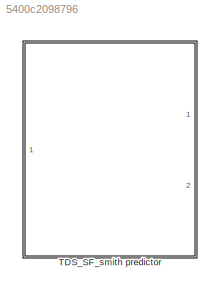
MODEL slx_5400c2098796
KIND model
CONFIG AbsTol = auto
CONFIG EnableMultiTasking = off
CONFIG FixedStep = auto
CONFIG MaxStep = auto
CONFIG MinStep = auto
CONFIG RelTol = 1e-3
CONFIG SampleTimeConstraint = Unconstrained
CONFIG Solver = VariableStepAuto
CONFIG SolverName = VariableStepAuto
CONFIG StartTime = 0.0
CONFIG StopTime = 10.0
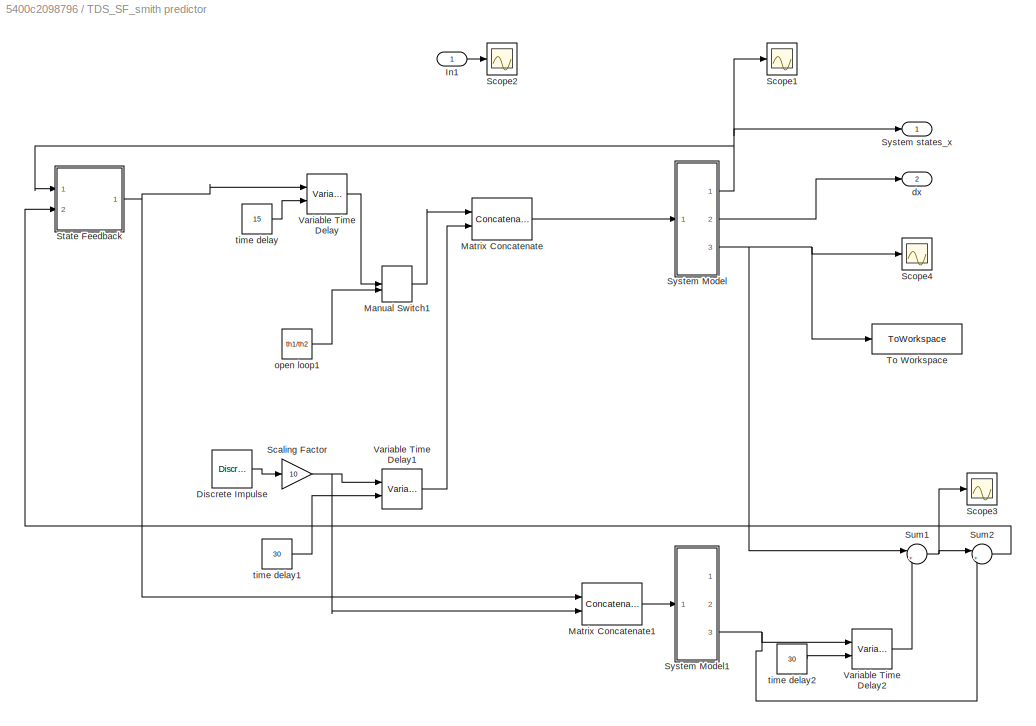
BLOCK [SubSystem] TDS_SF_smith predictor
  Ports = [1, 2]
  RequestExecContextInheritance = off
BLOCK [Reference] TDS_SF_smith predictor/Discrete Impulse  REF=dspsrcs4/Discrete 
Impulse
  Ports = [0, 1]
  SourceBlock = dspsrcs4/Discrete \nImpulse
  SourceProductBaseCode = DS
  SourceProductName = DSP System Toolbox
  SourceType = Discrete Impulse
BLOCK [Inport] TDS_SF_smith predictor/In1
  IconDisplay = Port number
BLOCK [ManualSwitch] TDS_SF_smith predictor/Manual Switch1
BLOCK [Concatenate] TDS_SF_smith predictor/Matrix Concatenate
  ConcatenateDimension = 2
  Ports = [2, 1]
BLOCK [Concatenate] TDS_SF_smith predictor/Matrix Concatenate1
  ConcatenateDimension = 2
  Ports = [2, 1]
BLOCK [Gain] TDS_SF_smith predictor/Scaling Factor
  Gain = 10
  OutDataTypeStr = Inherit: Inherit via internal rule
  ParamDataTypeStr = Inherit: Inherit via internal rule
  SaturateOnIntegerOverflow = off
BLOCK [Scope] TDS_SF_smith predictor/Scope1
  Floating = off
  NumInputPorts = 1
  Ports = [1]
  ScopeSpecificationString = Simulink.scopes.TimeScopeBlockCfg('CurrentConfiguration', extmgr.ConfigurationSet(extmgr.Configuration('Core','General UI',true),extmgr.Configuration('Core','Source UI',true),extmgr.Configuration('Sources','WiredSimulink',true,'DataLoggingVariableName','ScopeData2'),extmgr.Configuration('Visuals','Time Domain',true,'SerializedDisplays',{struct('MinYLimReal','-17.88692','MaxYLimReal','160.98226','Y...<+1561ch>
BLOCK [Scope] TDS_SF_smith predictor/Scope2
  Floating = off
  NumInputPorts = 1
  Ports = [1]
  ScopeSpecificationString = Simulink.scopes.TimeScopeBlockCfg('CurrentConfiguration', extmgr.ConfigurationSet(extmgr.Configuration('Core','General UI',true),extmgr.Configuration('Core','Source UI',true),extmgr.Configuration('Sources','WiredSimulink',true,'DataLoggingVariableName','ScopeData3'),extmgr.Configuration('Visuals','Time Domain',true,'SerializedDisplays',{struct('MinYLimReal','-0.05207','MaxYLimReal','0.09304','YLab...<+1468ch>
BLOCK [Scope] TDS_SF_smith predictor/Scope3
  Floating = off
  NumInputPorts = 1
  Ports = [1]
  ScopeSpecificationString = Simulink.scopes.TimeScopeBlockCfg('CurrentConfiguration', extmgr.ConfigurationSet(extmgr.Configuration('Core','General UI',true,'FigureColor',[0.501960784313725 0.501960784313725 0.501960784313725]),extmgr.Configuration('Core','Source UI',true),extmgr.Configuration('Sources','WiredSimulink',true,'DataLoggingVariableName','ScopeData2'),extmgr.Configuration('Visuals','Time Domain',true,'SerializedDi...<+1758ch>
BLOCK [Scope] TDS_SF_smith predictor/Scope4
  Floating = off
  NumInputPorts = 1
  Ports = [1]
  ScopeSpecificationString = Simulink.scopes.TimeScopeBlockCfg('CurrentConfiguration', extmgr.ConfigurationSet(extmgr.Configuration('Core','General UI',true,'FigureColor',[0.501960784313725 0.501960784313725 0.501960784313725]),extmgr.Configuration('Core','Source UI',true),extmgr.Configuration('Sources','WiredSimulink',true,'DataLoggingVariableName','ScopeData1'),extmgr.Configuration('Visuals','Time Domain',true,'SerializedDi...<+1810ch>
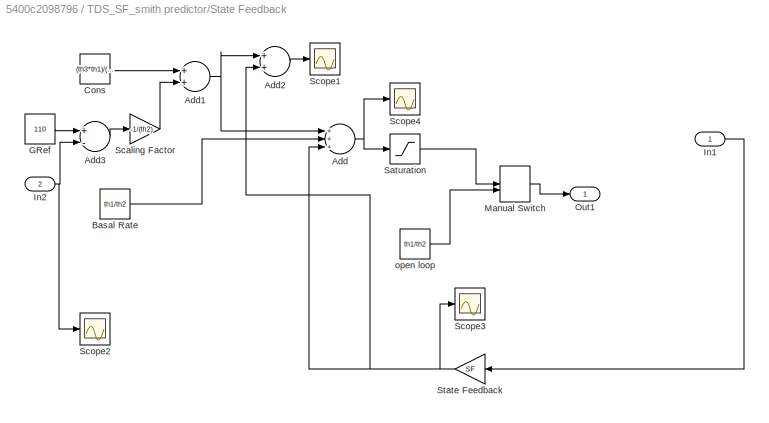
BLOCK [SubSystem] TDS_SF_smith predictor/State Feedback 
  Ports = [2, 1]
  RequestExecContextInheritance = off
BLOCK [Sum] TDS_SF_smith predictor/State Feedback /Add
  InputSameDT = off
  Inputs = +++
  OutDataTypeStr = Inherit: Inherit via internal rule
  Ports = [3, 1]
  SaturateOnIntegerOverflow = off
BLOCK [Sum] TDS_SF_smith predictor/State Feedback /Add1
  InputSameDT = off
  OutDataTypeStr = Inherit: Inherit via internal rule
  Ports = [2, 1]
  SaturateOnIntegerOverflow = off
BLOCK [Sum] TDS_SF_smith predictor/State Feedback /Add2
  InputSameDT = off
  OutDataTypeStr = Inherit: Inherit via internal rule
  Ports = [2, 1]
  SaturateOnIntegerOverflow = off
BLOCK [Sum] TDS_SF_smith predictor/State Feedback /Add3
  InputSameDT = off
  Inputs = +-
  OutDataTypeStr = Inherit: Inherit via internal rule
  Ports = [2, 1]
  SaturateOnIntegerOverflow = off
BLOCK [Constant] TDS_SF_smith predictor/State Feedback /Basal Rate
  Value = th1/th2
  VectorParams1D = off
BLOCK [Constant] TDS_SF_smith predictor/State Feedback /Cons
  Value = (th3*th1)/(th2)
  VectorParams1D = off
BLOCK [Constant] TDS_SF_smith predictor/State Feedback /GRef
  Value = 110
BLOCK [Inport] TDS_SF_smith predictor/State Feedback /In1
  IconDisplay = Port number
BLOCK [Inport] TDS_SF_smith predictor/State Feedback /In2
  IconDisplay = Port number
  Port = 2
BLOCK [ManualSwitch] TDS_SF_smith predictor/State Feedback /Manual Switch
BLOCK [Outport] TDS_SF_smith predictor/State Feedback /Out1
  IconDisplay = Port number
BLOCK [Saturate] TDS_SF_smith predictor/State Feedback /Saturation
  InputPortMap = u0
  LowerLimit = 0
  Ports = [1, 1]
  UpperLimit = 2
BLOCK [Gain] TDS_SF_smith predictor/State Feedback /Scaling Factor
  Gain = -1/(th2)
  OutDataTypeStr = Inherit: Inherit via internal rule
  ParamDataTypeStr = Inherit: Inherit via internal rule
  SaturateOnIntegerOverflow = off
BLOCK [Scope] TDS_SF_smith predictor/State Feedback /Scope1
  Floating = off
  NumInputPorts = 1
  Ports = [1]
  ScopeSpecificationString = Simulink.scopes.TimeScopeBlockCfg('CurrentConfiguration', extmgr.ConfigurationSet(extmgr.Configuration('Core','General UI',true),extmgr.Configuration('Core','Source UI',true),extmgr.Configuration('Sources','WiredSimulink',true,'DataLoggingVariableName','ScopeData1'),extmgr.Configuration('Visuals','Time Domain',true,'SerializedDisplays',{struct('MinYLimReal','-0.0034','MaxYLimReal','0.03062','YLabe...<+1482ch>
BLOCK [Scope] TDS_SF_smith predictor/State Feedback /Scope2
  Floating = off
  NumInputPorts = 1
  Ports = [1]
  ScopeSpecificationString = Simulink.scopes.TimeScopeBlockCfg('CurrentConfiguration', extmgr.ConfigurationSet(extmgr.Configuration('Core','General UI',true),extmgr.Configuration('Core','Source UI',true),extmgr.Configuration('Sources','WiredSimulink',true,'DataLoggingVariableName','ScopeData1'),extmgr.Configuration('Visuals','Time Domain',true,'SerializedDisplays',{struct('MinYLimReal','-685.68937','MaxYLimReal','320.61326','...<+1498ch>
BLOCK [Scope] TDS_SF_smith predictor/State Feedback /Scope3
  Floating = off
  NumInputPorts = 1
  Ports = [1]
  ScopeSpecificationString = Simulink.scopes.TimeScopeBlockCfg('CurrentConfiguration', extmgr.ConfigurationSet(extmgr.Configuration('Core','General UI',true),extmgr.Configuration('Core','Source UI',true),extmgr.Configuration('Sources','WiredSimulink',true,'DataLoggingVariableName','ScopeData1'),extmgr.Configuration('Visuals','Time Domain',true,'SerializedDisplays',{struct('MinYLimReal','-0.02629','MaxYLimReal','0.00065','YLab...<+1488ch>
BLOCK [Scope] TDS_SF_smith predictor/State Feedback /Scope4
  Floating = off
  NumInputPorts = 1
  Ports = [1]
  ScopeSpecificationString = Simulink.scopes.TimeScopeBlockCfg('CurrentConfiguration', extmgr.ConfigurationSet(extmgr.Configuration('Core','General UI',true),extmgr.Configuration('Core','Source UI',true),extmgr.Configuration('Sources','WiredSimulink',true,'DataLoggingVariableName','ScopeData2'),extmgr.Configuration('Visuals','Time Domain',true,'SerializedDisplays',{struct('MinYLimReal','0.00975','MaxYLimReal','0.05718','YLabe...<+1431ch>
BLOCK [Gain] TDS_SF_smith predictor/State Feedback /State Feedback
  Gain = SF
  Multiplication = Matrix(K*u)
  OutDataTypeStr = Inherit: Inherit via internal rule
  ParamDataTypeStr = Inherit: Inherit via internal rule
  SaturateOnIntegerOverflow = off
BLOCK [Constant] TDS_SF_smith predictor/State Feedback /open loop
  Value = th1/th2
BLOCK [Sum] TDS_SF_smith predictor/Sum1
  IconShape = round
  InputSameDT = off
  Inputs = |+-
  OutDataTypeStr = Inherit: Inherit via internal rule
  Ports = [2, 1]
  SaturateOnIntegerOverflow = off
BLOCK [Sum] TDS_SF_smith predictor/Sum2
  IconShape = round
  InputSameDT = off
  Inputs = |++
  OutDataTypeStr = Inherit: Inherit via internal rule
  Ports = [2, 1]
  SaturateOnIntegerOverflow = off
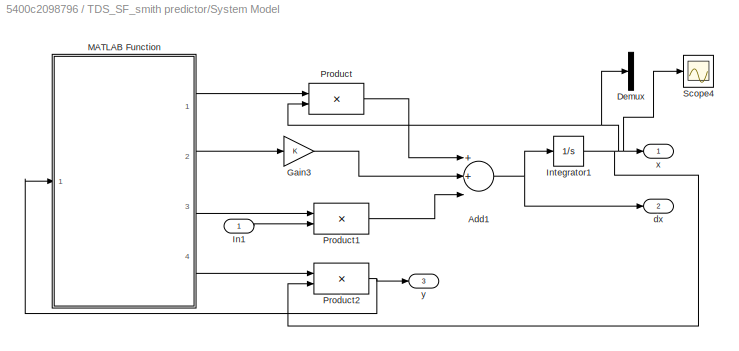
BLOCK [SubSystem] TDS_SF_smith predictor/System Model
  Ports = [1, 3]
  RequestExecContextInheritance = off
BLOCK [Sum] TDS_SF_smith predictor/System Model/Add1
  InputSameDT = off
  Inputs = 3
  OutDataTypeStr = Inherit: Inherit via internal rule
  Ports = [3, 1]
  SaturateOnIntegerOverflow = off
BLOCK [Demux] TDS_SF_smith predictor/System Model/Demux
  DisplayOption = bar
  Outputs = 3
  Ports = [1, 3]
BLOCK [Gain] TDS_SF_smith predictor/System Model/Gain3
  Multiplication = Matrix(K*u)
  OutDataTypeStr = Inherit: Inherit via internal rule
  ParamDataTypeStr = Inherit: Inherit via internal rule
  SaturateOnIntegerOverflow = off
BLOCK [Inport] TDS_SF_smith predictor/System Model/In1
  IconDisplay = Port number
BLOCK [Integrator] TDS_SF_smith predictor/System Model/Integrator1
  InitialCondition = [110; th1/th2; 0]
  Ports = [1, 1]
  ZeroCross = off
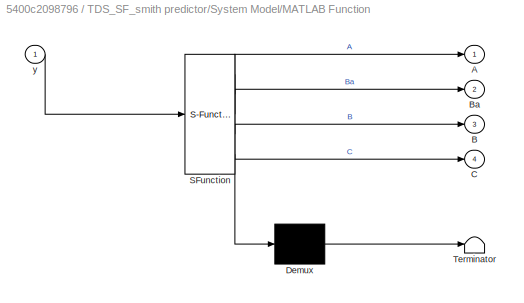
BLOCK [SubSystem] TDS_SF_smith predictor/System Model/MATLAB Function
  ErrorFcn = Stateflow.Translate.translate
  PermitHierarchicalResolution = ExplicitOnly
  Ports = [1, 4]
  RequestExecContextInheritance = off
  SFBlockType = MATLAB Function
  TreatAsAtomicUnit = on
BLOCK [Demux] TDS_SF_smith predictor/System Model/MATLAB Function/ Demux 
  Outputs = 1
  Ports = [1, 1]
BLOCK [S-Function] TDS_SF_smith predictor/System Model/MATLAB Function/ SFunction 
  EnableBusSupport = on
  FunctionName = sf_sfun
  PortCounts = [1 5]
  Ports = [1, 5]
  SFcnIsStateOwnerBlock = off
  SFunctionDeploymentMode = off
  Tag = Stateflow S-Function 2
BLOCK [Terminator] TDS_SF_smith predictor/System Model/MATLAB Function/ Terminator 
BLOCK [Outport] TDS_SF_smith predictor/System Model/MATLAB Function/A
  IconDisplay = Port number
BLOCK [Outport] TDS_SF_smith predictor/System Model/MATLAB Function/B
  IconDisplay = Port number
  Port = 3
BLOCK [Outport] TDS_SF_smith predictor/System Model/MATLAB Function/Ba
  IconDisplay = Port number
  Port = 2
BLOCK [Outport] TDS_SF_smith predictor/System Model/MATLAB Function/C
  IconDisplay = Port number
  Port = 4
BLOCK [Inport] TDS_SF_smith predictor/System Model/MATLAB Function/y
  IconDisplay = Port number
BLOCK [Product] TDS_SF_smith predictor/System Model/Product
  InputSameDT = off
  Multiplication = Matrix(*)
  OutDataTypeStr = Inherit: Inherit via internal rule
  Ports = [2, 1]
  RndMeth = Floor
  SaturateOnIntegerOverflow = off
BLOCK [Product] TDS_SF_smith predictor/System Model/Product1
  InputSameDT = off
  Multiplication = Matrix(*)
  OutDataTypeStr = Inherit: Inherit via internal rule
  Ports = [2, 1]
  RndMeth = Floor
  SaturateOnIntegerOverflow = off
BLOCK [Product] TDS_SF_smith predictor/System Model/Product2
  InputSameDT = off
  Multiplication = Matrix(*)
  OutDataTypeStr = Inherit: Inherit via internal rule
  Ports = [2, 1]
  RndMeth = Floor
  SaturateOnIntegerOverflow = off
BLOCK [Scope] TDS_SF_smith predictor/System Model/Scope4
  Floating = off
  NumInputPorts = 1
  Ports = [1]
  ScopeSpecificationString = Simulink.scopes.TimeScopeBlockCfg('CurrentConfiguration', extmgr.ConfigurationSet(extmgr.Configuration('Core','General UI',true,'FigureColor',[0.501960784313725 0.501960784313725 0.501960784313725]),extmgr.Configuration('Core','Source UI',true),extmgr.Configuration('Sources','WiredSimulink',true,'DataLoggingVariableName','ScopeData4'),extmgr.Configuration('Visuals','Time Domain',true,'SerializedDi...<+1822ch>
BLOCK [Outport] TDS_SF_smith predictor/System Model/dx
  IconDisplay = Port number
  Port = 2
BLOCK [Outport] TDS_SF_smith predictor/System Model/x
  IconDisplay = Port number
BLOCK [Outport] TDS_SF_smith predictor/System Model/y
  IconDisplay = Port number
  Port = 3
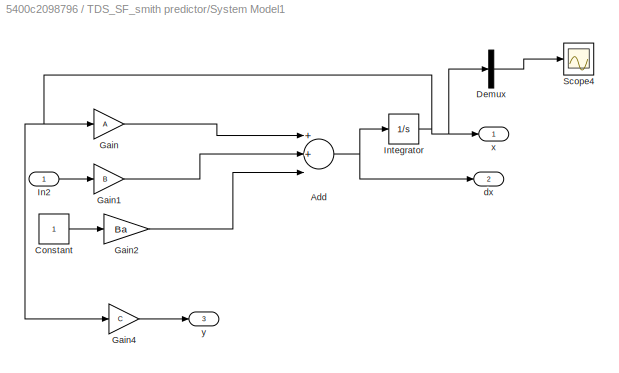
BLOCK [SubSystem] TDS_SF_smith predictor/System Model1
  Ports = [1, 3]
  RequestExecContextInheritance = off
BLOCK [Sum] TDS_SF_smith predictor/System Model1/Add
  InputSameDT = off
  Inputs = 3
  OutDataTypeStr = Inherit: Inherit via internal rule
  Ports = [3, 1]
  SaturateOnIntegerOverflow = off
BLOCK [Constant] TDS_SF_smith predictor/System Model1/Constant
BLOCK [Demux] TDS_SF_smith predictor/System Model1/Demux
  DisplayOption = bar
  Outputs = 3
  Ports = [1, 3]
BLOCK [Gain] TDS_SF_smith predictor/System Model1/Gain
  Gain = A
  Multiplication = Matrix(K*u)
  OutDataTypeStr = Inherit: Inherit via internal rule
  ParamDataTypeStr = Inherit: Inherit via internal rule
  SaturateOnIntegerOverflow = off
BLOCK [Gain] TDS_SF_smith predictor/System Model1/Gain1
  Gain = B
  Multiplication = Matrix(K*u)
  OutDataTypeStr = Inherit: Inherit via internal rule
  ParamDataTypeStr = Inherit: Inherit via internal rule
  SaturateOnIntegerOverflow = off
BLOCK [Gain] TDS_SF_smith predictor/System Model1/Gain2
  Gain = Ba
  Multiplication = Matrix(K*u)
  OutDataTypeStr = Inherit: Inherit via internal rule
  ParamDataTypeStr = Inherit: Inherit via internal rule
  SaturateOnIntegerOverflow = off
BLOCK [Gain] TDS_SF_smith predictor/System Model1/Gain4
  Gain = C
  Multiplication = Matrix(K*u)
  OutDataTypeStr = Inherit: Inherit via internal rule
  ParamDataTypeStr = Inherit: Inherit via internal rule
  SaturateOnIntegerOverflow = off
BLOCK [Inport] TDS_SF_smith predictor/System Model1/In2
  IconDisplay = Port number
BLOCK [Integrator] TDS_SF_smith predictor/System Model1/Integrator
  InitialCondition = [110; th1/th2; 0]
  Ports = [1, 1]
  ZeroCross = off
BLOCK [Scope] TDS_SF_smith predictor/System Model1/Scope4
  Floating = off
  NumInputPorts = 1
  Ports = [1]
  ScopeSpecificationString = Simulink.scopes.TimeScopeBlockCfg('CurrentConfiguration', extmgr.ConfigurationSet(extmgr.Configuration('Core','General UI',true,'FigureColor',[0.501960784313725 0.501960784313725 0.501960784313725]),extmgr.Configuration('Core','Source UI',true),extmgr.Configuration('Sources','WiredSimulink',true,'DataLoggingVariableName','ScopeData4'),extmgr.Configuration('Visuals','Time Domain',true,'SerializedDi...<+1756ch>
BLOCK [Outport] TDS_SF_smith predictor/System Model1/dx
  IconDisplay = Port number
  Port = 2
BLOCK [Outport] TDS_SF_smith predictor/System Model1/x
  IconDisplay = Port number
BLOCK [Outport] TDS_SF_smith predictor/System Model1/y
  IconDisplay = Port number
  Port = 3
BLOCK [Outport] TDS_SF_smith predictor/System states_x
  IconDisplay = Port number
BLOCK [ToWorkspace] TDS_SF_smith predictor/To Workspace
  FixptAsFi = on
  MaxDataPoints = inf
  Ports = [1]
  SampleTime = -1
  SaveFormat = Timeseries
  VariableName = SimX
BLOCK [VariableTransportDelay] TDS_SF_smith predictor/Variable Time Delay
  InitialOutput = th1/th2
  MaximumDelay = 20
  Ports = [2, 1]
BLOCK [VariableTransportDelay] TDS_SF_smith predictor/Variable Time Delay1
  InitialOutput = 0.00000000000001
  MaximumDelay = 40
  Ports = [2, 1]
BLOCK [VariableTransportDelay] TDS_SF_smith predictor/Variable Time Delay2
  InitialOutput = 110
  MaximumDelay = 60
  Ports = [2, 1]
BLOCK [Outport] TDS_SF_smith predictor/dx
  IconDisplay = Port number
  Port = 2
BLOCK [Constant] TDS_SF_smith predictor/open loop1
  Value = th1/th2
BLOCK [Constant] TDS_SF_smith predictor/time delay
  Value = 15
  VectorParams1D = off
BLOCK [Constant] TDS_SF_smith predictor/time delay1
  Value = 30
  VectorParams1D = off
BLOCK [Constant] TDS_SF_smith predictor/time delay2
  Value = 30
  VectorParams1D = off
LINE TDS_SF_smith predictor/Discrete Impulse:1 -> TDS_SF_smith predictor/Scaling Factor:1
LINE TDS_SF_smith predictor/In1:1 -> TDS_SF_smith predictor/Scope2:1
LINE TDS_SF_smith predictor/Manual Switch1:1 -> TDS_SF_smith predictor/Matrix Concatenate:1
LINE TDS_SF_smith predictor/Matrix Concatenate1:1 -> TDS_SF_smith predictor/System Model1:1
LINE TDS_SF_smith predictor/Matrix Concatenate:1 -> TDS_SF_smith predictor/System Model:1
NET TDS_SF_smith predictor/Scaling Factor:1 -> TDS_SF_smith predictor/Matrix Concatenate1:2, TDS_SF_smith predictor/Variable Time Delay1:1
NET TDS_SF_smith predictor/State Feedback /Add1:1 -> TDS_SF_smith predictor/State Feedback /Add2:1, TDS_SF_smith predictor/State Feedback /Add:1
LINE TDS_SF_smith predictor/State Feedback /Add2:1 -> TDS_SF_smith predictor/State Feedback /Scope1:1
LINE TDS_SF_smith predictor/State Feedback /Add3:1 -> TDS_SF_smith predictor/State Feedback /Scaling Factor:1
NET TDS_SF_smith predictor/State Feedback /Add:1 -> TDS_SF_smith predictor/State Feedback /Saturation:1, TDS_SF_smith predictor/State Feedback /Scope4:1
LINE TDS_SF_smith predictor/State Feedback /Basal Rate:1 -> TDS_SF_smith predictor/State Feedback /Add:2
LINE TDS_SF_smith predictor/State Feedback /Cons:1 -> TDS_SF_smith predictor/State Feedback /Add1:1
LINE TDS_SF_smith predictor/State Feedback /GRef:1 -> TDS_SF_smith predictor/State Feedback /Add3:1
LINE TDS_SF_smith predictor/State Feedback /In1:1 -> TDS_SF_smith predictor/State Feedback /State Feedback:1
NET TDS_SF_smith predictor/State Feedback /In2:1 -> TDS_SF_smith predictor/State Feedback /Add3:2, TDS_SF_smith predictor/State Feedback /Scope2:1
LINE TDS_SF_smith predictor/State Feedback /Manual Switch:1 -> TDS_SF_smith predictor/State Feedback /Out1:1
LINE TDS_SF_smith predictor/State Feedback /Saturation:1 -> TDS_SF_smith predictor/State Feedback /Manual Switch:1
LINE TDS_SF_smith predictor/State Feedback /Scaling Factor:1 -> TDS_SF_smith predictor/State Feedback /Add1:2
NET TDS_SF_smith predictor/State Feedback /State Feedback:1 -> TDS_SF_smith predictor/State Feedback /Add2:2, TDS_SF_smith predictor/State Feedback /Add:3, TDS_SF_smith predictor/State Feedback /Scope3:1
LINE TDS_SF_smith predictor/State Feedback /open loop:1 -> TDS_SF_smith predictor/State Feedback /Manual Switch:2
NET TDS_SF_smith predictor/State Feedback :1 -> TDS_SF_smith predictor/Matrix Concatenate1:1, TDS_SF_smith predictor/Variable Time Delay:1
NET TDS_SF_smith predictor/Sum1:1 -> TDS_SF_smith predictor/Scope3:1, TDS_SF_smith predictor/Sum2:1
LINE TDS_SF_smith predictor/Sum2:1 -> TDS_SF_smith predictor/State Feedback :2
NET TDS_SF_smith predictor/System Model/Add1:1 -> TDS_SF_smith predictor/System Model/Integrator1:1, TDS_SF_smith predictor/System Model/dx:1
LINE TDS_SF_smith predictor/System Model/Gain3:1 -> TDS_SF_smith predictor/System Model/Add1:2
LINE TDS_SF_smith predictor/System Model/In1:1 -> TDS_SF_smith predictor/System Model/Product1:2
NET TDS_SF_smith predictor/System Model/Integrator1:1 -> TDS_SF_smith predictor/System Model/Demux:1, TDS_SF_smith predictor/System Model/Product2:2, TDS_SF_smith predictor/System Model/Product:2, TDS_SF_smith predictor/System Model/Scope4:1, TDS_SF_smith predictor/System Model/x:1
LINE TDS_SF_smith predictor/System Model/MATLAB Function:1 -> TDS_SF_smith predictor/System Model/Product:1
LINE TDS_SF_smith predictor/System Model/MATLAB Function:2 -> TDS_SF_smith predictor/System Model/Gain3:1
LINE TDS_SF_smith predictor/System Model/MATLAB Function:3 -> TDS_SF_smith predictor/System Model/Product1:1
LINE TDS_SF_smith predictor/System Model/MATLAB Function:4 -> TDS_SF_smith predictor/System Model/Product2:1
LINE TDS_SF_smith predictor/System Model/Product1:1 -> TDS_SF_smith predictor/System Model/Add1:3
NET TDS_SF_smith predictor/System Model/Product2:1 -> TDS_SF_smith predictor/System Model/MATLAB Function:1, TDS_SF_smith predictor/System Model/y:1
LINE TDS_SF_smith predictor/System Model/Product:1 -> TDS_SF_smith predictor/System Model/Add1:1
NET TDS_SF_smith predictor/System Model1/Add:1 -> TDS_SF_smith predictor/System Model1/Integrator:1, TDS_SF_smith predictor/System Model1/dx:1
LINE TDS_SF_smith predictor/System Model1/Constant:1 -> TDS_SF_smith predictor/System Model1/Gain2:1
LINE TDS_SF_smith predictor/System Model1/Demux:2 -> TDS_SF_smith predictor/System Model1/Scope4:1
LINE TDS_SF_smith predictor/System Model1/Gain1:1 -> TDS_SF_smith predictor/System Model1/Add:2
LINE TDS_SF_smith predictor/System Model1/Gain2:1 -> TDS_SF_smith predictor/System Model1/Add:3
LINE TDS_SF_smith predictor/System Model1/Gain4:1 -> TDS_SF_smith predictor/System Model1/y:1
LINE TDS_SF_smith predictor/System Model1/Gain:1 -> TDS_SF_smith predictor/System Model1/Add:1
LINE TDS_SF_smith predictor/System Model1/In2:1 -> TDS_SF_smith predictor/System Model1/Gain1:1
NET TDS_SF_smith predictor/System Model1/Integrator:1 -> TDS_SF_smith predictor/System Model1/Demux:1, TDS_SF_smith predictor/System Model1/Gain4:1, TDS_SF_smith predictor/System Model1/Gain:1, TDS_SF_smith predictor/System Model1/x:1
NET TDS_SF_smith predictor/System Model1:3 -> TDS_SF_smith predictor/Sum2:2, TDS_SF_smith predictor/Variable Time Delay2:1
NET TDS_SF_smith predictor/System Model:1 -> TDS_SF_smith predictor/Scope1:1, TDS_SF_smith predictor/State Feedback :1, TDS_SF_smith predictor/System states_x:1
LINE TDS_SF_smith predictor/System Model:2 -> TDS_SF_smith predictor/dx:1
NET TDS_SF_smith predictor/System Model:3 -> TDS_SF_smith predictor/Scope4:1, TDS_SF_smith predictor/Sum1:1, TDS_SF_smith predictor/To Workspace:1
LINE TDS_SF_smith predictor/Variable Time Delay1:1 -> TDS_SF_smith predictor/Matrix Concatenate:2
LINE TDS_SF_smith predictor/Variable Time Delay2:1 -> TDS_SF_smith predictor/Sum1:2
LINE TDS_SF_smith predictor/Variable Time Delay:1 -> TDS_SF_smith predictor/Manual Switch1:1
LINE TDS_SF_smith predictor/open loop1:1 -> TDS_SF_smith predictor/Manual Switch1:2
LINE TDS_SF_smith predictor/time delay1:1 -> TDS_SF_smith predictor/Variable Time Delay1:2
LINE TDS_SF_smith predictor/time delay2:1 -> TDS_SF_smith predictor/Variable Time Delay2:2
LINE TDS_SF_smith predictor/time delay:1 -> TDS_SF_smith predictor/Variable Time Delay:2
note: NET lines group one-source signal fan-out (src -> all destinations, sorted); 1:1 wires keep LINE
CHART TDS_SF_smith predictor/System Model/MATLAB Function states=1 transitions=1
  STATE_LABEL 'eML_blk_kernel()'
  STATE_LABEL "SCRIPT:\nfunction [A, Ba, B, C] = fcn(y)\n\n%% positivity work\n\nth1 = 0.85;\nth2 = 50;\nth3 = 60;\nth4 = 5;\nth5 = 20;\n\n%Gl = 110;\n\n\n%% State feedback control\n\nA = [0 -th2 th4; 0 -1/th3 0; 0 0 -1/th5];\nB = [0 0; 1/th3 0; 0 1/th5];\nBa = [th1; 0; 0];\nC = [1 0 0];\n\n\n%D = 0;\n%Create the model.\n%G = ss(A,B,C,D,'InputDelay',15);\n%SF = [0 -k*th3 (k*th5*th4)/(th2)] %% with smith predictor\n%SF1 = [k/th2 -k*th3 (k...<+94ch>"
